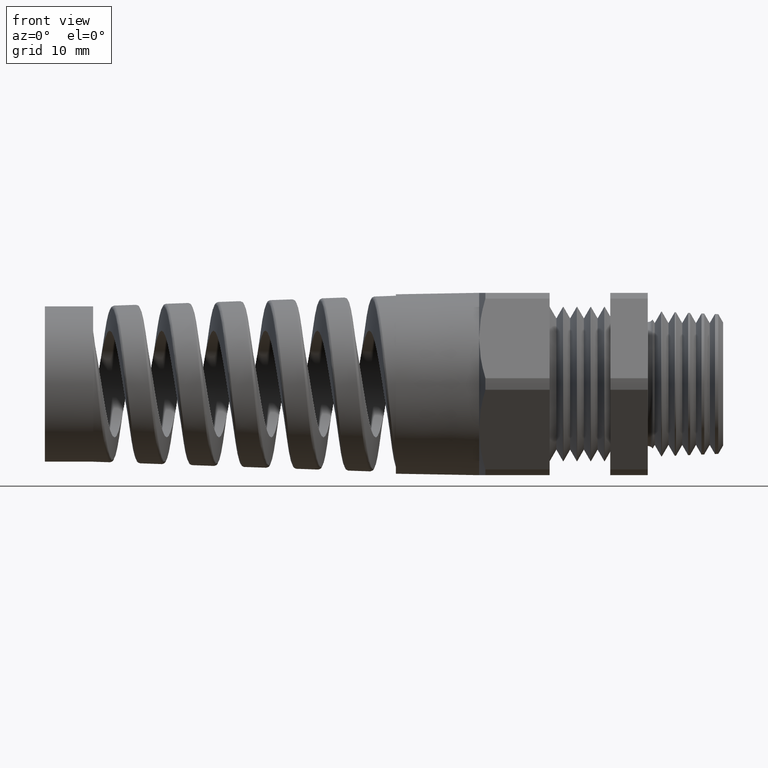
[diagram: clean part render]
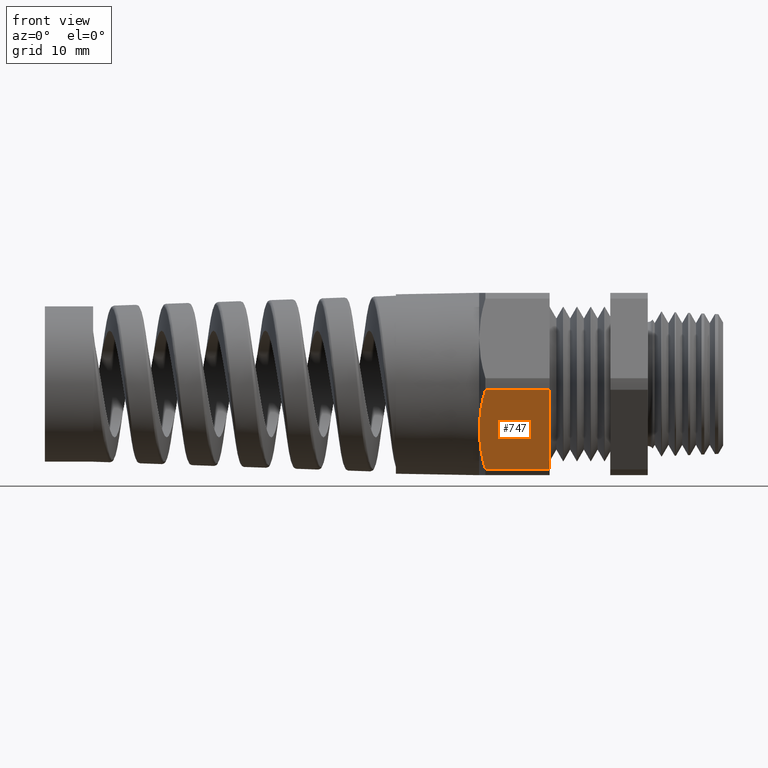
[diagram: same view with one face highlighted and labeled with its STEP entity id]
A machine part, front view. The second image highlights one B-rep face of the part: STEP entity #747.
In plain terms, the highlighted planar face has unit normal (0, -0.866, -0.5).
Its self-contained STEP definition (entity closure, byte-faithful):
#394 = VERTEX_POINT ( 'NONE', #6804 ) ;
#544 = VERTEX_POINT ( 'NONE', #6858 ) ;
#581 = VERTEX_POINT ( 'NONE', #6930 ) ;
#589 = EDGE_CURVE ( 'NONE', #544, #593, #6984, .T. ) ;
#591 = EDGE_CURVE ( 'NONE', #581, #602, #6979, .T. ) ;
#593 = VERTEX_POINT ( 'NONE', #6975 ) ;
#602 = VERTEX_POINT ( 'NONE', #7015 ) ;
#607 = ORIENTED_EDGE ( 'NONE', *, *, #712, .T. ) ;
#712 = EDGE_CURVE ( 'NONE', #602, #593, #7279, .T. ) ;
#721 = ORIENTED_EDGE ( 'NONE', *, *, #589, .F. ) ;
#741 = ORIENTED_EDGE ( 'NONE', *, *, #591, .T. ) ;
#746 = EDGE_CURVE ( 'NONE', #394, #581, #7264, .T. ) ;
#747 = ADVANCED_FACE ( 'NONE', ( #7265 ), #7026, .T. ) ;
#748 = ORIENTED_EDGE ( 'NONE', *, *, #746, .T. ) ;
#749 = EDGE_LOOP ( 'NONE', ( #721, #751, #748, #741, #607 ) ) ;
#750 = EDGE_CURVE ( 'NONE', #544, #394, #7312, .T. ) ;
#751 = ORIENTED_EDGE ( 'NONE', *, *, #750, .T. ) ;
#6284 = CARTESIAN_POINT ( 'NONE',  ( -0.6823587424992742000, -0.2612741988924827700, -0.2974598128113639100 ) ) ;
#6285 = CARTESIAN_POINT ( 'NONE',  ( -0.6677692378864669200, -0.2301881248222757400, -0.3513024725088117500 ) ) ;
#6287 = CARTESIAN_POINT ( 'NONE',  ( -0.6758195584202751900, -0.2456692767811521600, -0.3244883307563435300 ) ) ;
#6289 = AXIS2_PLACEMENT_3D ( 'NONE', #6291, #6290, #6293 ) ;
#6290 = DIRECTION ( 'NONE',  ( 0.0000000000000000000, -0.8660254037844388200, -0.4999999999999997200 ) ) ;
#6291 = CARTESIAN_POINT ( 'NONE',  ( -1.893568786317334100, -0.4193309280160532100, -0.02369752749118811000 ) ) ;
#6293 = DIRECTION ( 'NONE',  ( 0.0000000000000000000, 0.4999999999999997200, -0.8660254037844388200 ) ) ;
#6804 = CARTESIAN_POINT ( 'NONE',  ( -0.6937499999999999800, -0.3247595264191645600, -0.1874999999999998900 ) ) ;
#6858 = CARTESIAN_POINT ( 'NONE',  ( -0.6677692378864669200, -0.4193309280160532100, -0.02369752749118810700 ) ) ;
#6930 = CARTESIAN_POINT ( 'NONE',  ( -0.6677692378864669200, -0.2301881248222757400, -0.3513024725088117500 ) ) ;
#6975 = CARTESIAN_POINT ( 'NONE',  ( -0.4037500000000000500, -0.4193309280160532100, -0.02369752749118811000 ) ) ;
#6976 = DIRECTION ( 'NONE',  ( 1.000000000000000000, 0.0000000000000000000, 0.0000000000000000000 ) ) ;
#6977 = VECTOR ( 'NONE', #6976, 39.37007874015748100 ) ;
#6978 = CARTESIAN_POINT ( 'NONE',  ( -1.893568786317334100, -0.2301881248222757400, -0.3513024725088117500 ) ) ;
#6979 = LINE ( 'NONE', #6978, #6977 ) ;
#6981 = DIRECTION ( 'NONE',  ( 1.000000000000000000, 0.0000000000000000000, 0.0000000000000000000 ) ) ;
#6982 = VECTOR ( 'NONE', #6981, 39.37007874015748100 ) ;
#6983 = CARTESIAN_POINT ( 'NONE',  ( -1.893568786317334100, -0.4193309280160532100, -0.02369752749118811000 ) ) ;
#6984 = LINE ( 'NONE', #6983, #6982 ) ;
#7015 = CARTESIAN_POINT ( 'NONE',  ( -0.4037500000000000500, -0.2301881248222757400, -0.3513024725088117500 ) ) ;
#7026 = PLANE ( 'NONE',  #6289 ) ;
#7259 = CARTESIAN_POINT ( 'NONE',  ( -0.6890958449295795400, -0.2849331685521923600, -0.2564812753060161100 ) ) ;
#7260 = CARTESIAN_POINT ( 'NONE',  ( -0.6908293426401992400, -0.2928614439435945300, -0.2427490995117095300 ) ) ;
#7261 = CARTESIAN_POINT ( 'NONE',  ( -0.6931602879428223600, -0.3088110433031369700, -0.2151235830606141600 ) ) ;
#7262 = CARTESIAN_POINT ( 'NONE',  ( -0.6937500000000000900, -0.3168132821342500300, -0.2012632988308260300 ) ) ;
#7263 = CARTESIAN_POINT ( 'NONE',  ( -0.6937499999999999800, -0.3247595264191645600, -0.1874999999999998900 ) ) ;
#7264 = B_SPLINE_CURVE_WITH_KNOTS ( 'NONE', 3,
 ( #7263, #7262, #7261, #7260, #7259, #6284, #6287, #6285 ),
 .UNSPECIFIED., .F., .F.,
 ( 4, 2, 2, 4 ),
 ( 0.004847852030600933000, 0.006051560003637242500, 0.007255267976673550300, 0.009662683922746166000 ),
 .UNSPECIFIED. ) ;
#7265 = FACE_OUTER_BOUND ( 'NONE', #749, .T. ) ;
#7276 = DIRECTION ( 'NONE',  ( 0.0000000000000000000, -0.4999999999999997200, 0.8660254037844388200 ) ) ;
#7277 = VECTOR ( 'NONE', #7276, 39.37007874015748100 ) ;
#7278 = CARTESIAN_POINT ( 'NONE',  ( -0.4037499999999999400, -0.2452595264191646800, -0.3251980392017255700 ) ) ;
#7279 = LINE ( 'NONE', #7278, #7277 ) ;
#7303 = CARTESIAN_POINT ( 'NONE',  ( -0.6937499999999999800, -0.3247595264191645600, -0.1874999999999998900 ) ) ;
#7304 = CARTESIAN_POINT ( 'NONE',  ( -0.6937499999999999800, -0.3407602263397258600, -0.1597859747809243200 ) ) ;
#7305 = CARTESIAN_POINT ( 'NONE',  ( -0.6913537581776820800, -0.3566287773148730200, -0.1323008382494727000 ) ) ;
#7306 = CARTESIAN_POINT ( 'NONE',  ( -0.6823975651380708200, -0.3881362572794259100, -0.07772828213240860800 ) ) ;
#7307 = CARTESIAN_POINT ( 'NONE',  ( -0.6758577677325460200, -0.4037762977196653900, -0.05063893745748173500 ) ) ;
#7308 = CARTESIAN_POINT ( 'NONE',  ( -0.6677692378864669200, -0.4193309280160532100, -0.02369752749118810700 ) ) ;
#7312 = B_SPLINE_CURVE_WITH_KNOTS ( 'NONE', 3,
 ( #7308, #7307, #7306, #7305, #7304, #7303 ),
 .UNSPECIFIED., .F., .F.,
 ( 4, 2, 4 ),
 ( 2.361310733801481900E-007, 0.002424044080837156600, 0.004847852030600933000 ),
 .UNSPECIFIED. ) ;